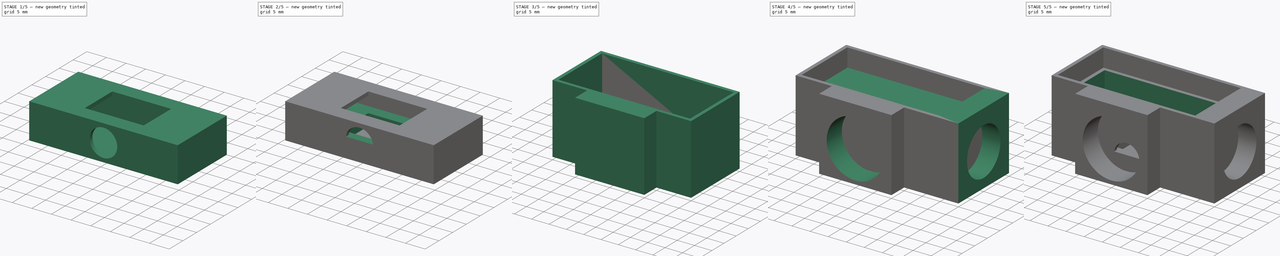
[diagram: build sequence overview — one tinted view per stage of 5, left to right]
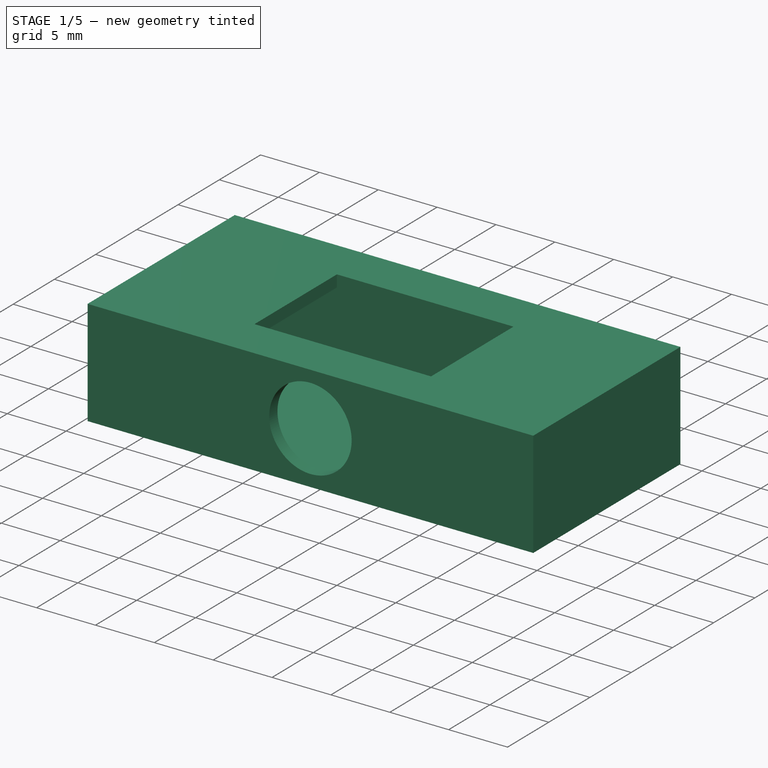
[diagram: stage 1 of 5 — iso view after this stage's code; geometry added in this stage tinted green]
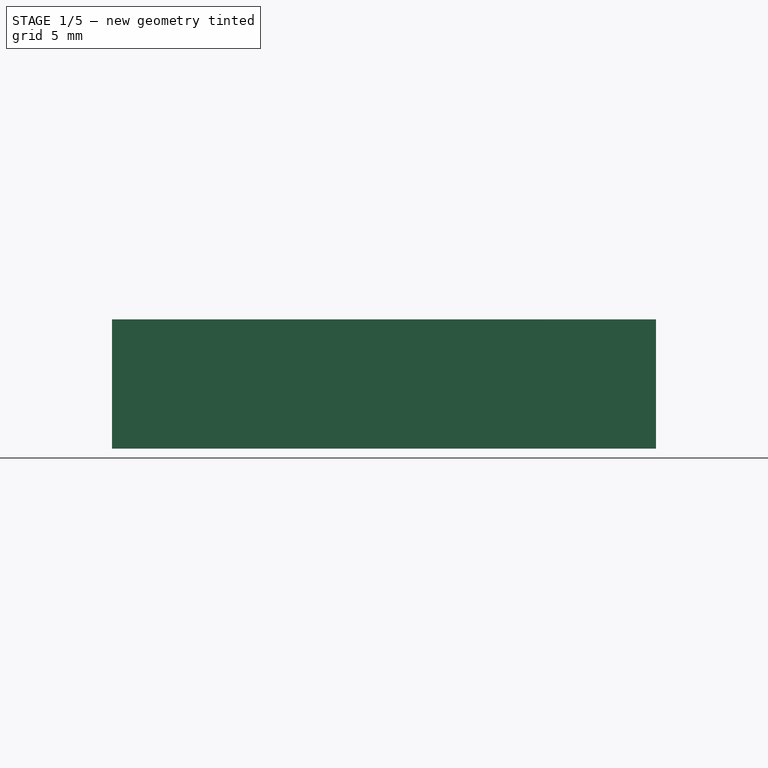
[diagram: stage 1 of 5 — front view after this stage's code; geometry added in this stage tinted green]
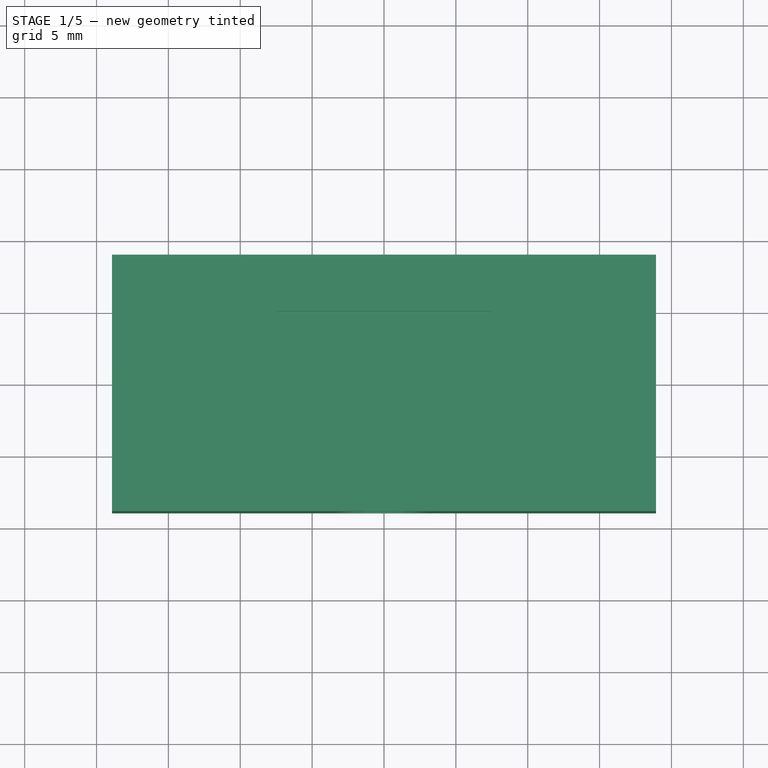
[diagram: stage 1 of 5 — top view after this stage's code; geometry added in this stage tinted green]
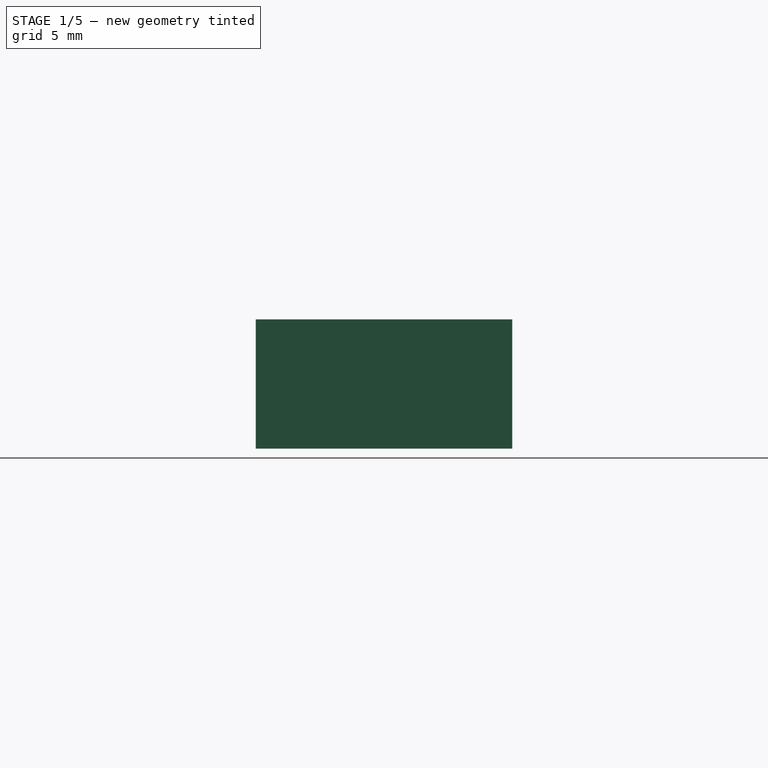
[diagram: stage 1 of 5 — right view after this stage's code; geometry added in this stage tinted green]
FCSTD DOCUMENT  (FreeCAD 1.0R39109 (Git))
Label: Pheidole2025
License: All rights reserved
LicenseURL: https://en.wikipedia.org/wiki/All_rights_reserved
objects: Sketcher::SketchObject×25, PartDesign::Pocket×16, PartDesign::Pad×9, PartDesign::Body×7
note: 132 computed .brp shape members not serialized (recipe doc carries the construction recipe); baked Part::Feature solids carry a one-line shape summary decoded from their .brp

FEATURE [PartDesign::Body] Body004  label="framemeshv2top"
  AllowCompound = false
  Group = -> [Sketch016,Pad006,Sketch017,Pocket010,Sketch018,Pocket011,Sketch019,Pocket012]
  Origin = -> Origin004
  Placement = pos=(0,0,10) rot=(0,0,1;0rad)
  Tip = -> Pocket012
FEATURE [Sketcher::SketchObject] Sketch020
  ArcFitTolerance = 1e-06
  AttachmentSupport = -> [XY_Plane005]
  FullyConstrained = true
  MakeInternals = false
  MapMode = 5
  sketch-geometry (4):
    g0: LineSegment StartX=-18.925 StartY=8.925 StartZ=0 EndX=-18.925 EndY=-8.925 EndZ=0
    g1: LineSegment StartX=-18.925 StartY=-8.925 StartZ=0 EndX=18.925 EndY=-8.925 EndZ=0
    g2: LineSegment StartX=18.925 StartY=-8.925 StartZ=0 EndX=18.925 EndY=8.925 EndZ=0
    g3: LineSegment StartX=18.925 StartY=8.925 StartZ=0 EndX=-18.925 EndY=8.925 EndZ=0
  constraints (12):
    c: Coincident(g0,g1)
    c: Coincident(g1,g2)
    c: Coincident(g2,g3)
    c: Coincident(g3,g0)
    c: Vertical(g0)
    c: Vertical(g2)
    c: Horizontal(g1)
    c: Horizontal(g3)
    c: DistanceX(g3,g3) = 37.85
    c: DistanceY(g2,g2) = 17.85
    c: DistanceX(g0,g-1) = 18.925
    c: DistanceY(g1,g-1) = 8.925
FEATURE [PartDesign::Pad] Pad007  label="cubevaciadobottom001"
  Direction = (0,0,1)
  Length = 9
  Length2 = 10
  Profile = -> Sketch020
  ReferenceAxis = -> Sketch020 [N_Axis]
  Refine = true
  Suppressed = false
  Type = 0
FEATURE [Sketcher::SketchObject] Sketch021
  ArcFitTolerance = 1e-06
  AttachmentSupport = -> [Pad007]
  FullyConstrained = true
  MakeInternals = false
  MapMode = 5
  Placement = pos=(0,0,0) rot=(1,0,0;3.14159rad)
  sketch-geometry (4):
    g0: LineSegment StartX=-17.925 StartY=7.925 StartZ=0 EndX=-17.925 EndY=-7.925 EndZ=0
    g1: LineSegment StartX=-17.925 StartY=-7.925 StartZ=0 EndX=17.925 EndY=-7.925 EndZ=0
    g2: LineSegment StartX=17.925 StartY=-7.925 StartZ=0 EndX=17.925 EndY=7.925 EndZ=0
    g3: LineSegment StartX=17.925 StartY=7.925 StartZ=0 EndX=-17.925 EndY=7.925 EndZ=0
  constraints (12):
    c: Coincident(g0,g1)
    c: Coincident(g1,g2)
    c: Coincident(g2,g3)
    c: Coincident(g3,g0)
    c: Vertical(g0)
    c: Vertical(g2)
    c: Horizontal(g1)
    c: Horizontal(g3)
    c: DistanceX(g3,g3) = 35.85
    c: DistanceY(g0,g0) = 15.85
    c: DistanceY(g-1,g0) = 7.925
    c: DistanceX(g0,g-1) = 17.925
FEATURE [PartDesign::Pocket] Pocket013  label="cubevaciadobottom"
  BaseFeature = -> Pad007
  Direction = (0,0,1)
  Length = 8
  Length2 = 5
  Profile = -> Sketch021
  ReferenceAxis = -> Sketch021 [N_Axis]
  Refine = true
  Suppressed = false
  Type = 0
FEATURE [Sketcher::SketchObject] Sketch022
  ArcFitTolerance = 1e-06
  AttachmentSupport = -> [Pocket013]
  FullyConstrained = true
  MakeInternals = false
  MapMode = 5
  Placement = pos=(0,0,8) rot=(1,0,0;3.14159rad)
  sketch-geometry (4):
    g0: LineSegment StartX=-7.5 StartY=5 StartZ=0 EndX=-7.5 EndY=-5 EndZ=0
    g1: LineSegment StartX=-7.5 StartY=-5 StartZ=0 EndX=7.5 EndY=-5 EndZ=0
    g2: LineSegment StartX=7.5 StartY=-5 StartZ=0 EndX=7.5 EndY=5 EndZ=0
    g3: LineSegment StartX=7.5 StartY=5 StartZ=0 EndX=-7.5 EndY=5 EndZ=0
  constraints (12):
    c: Coincident(g0,g1)
    c: Coincident(g1,g2)
    c: Coincident(g2,g3)
    c: Coincident(g3,g0)
    c: Vertical(g0)
    c: Vertical(g2)
    c: Horizontal(g1)
    c: Horizontal(g3)
    c: DistanceX(g3,g3) = 15
    c: DistanceY(g0,g0) = 10
    c: DistanceX(g0,g-1) = 7.5
    c: DistanceY(g0,g-1) = 5
FEATURE [PartDesign::Pocket] Pocket014  label="huecorectangular"
  BaseFeature = -> Pocket013
  Direction = (0,0,1)
  Length = 5
  Length2 = 5
  Profile = -> Sketch022
  ReferenceAxis = -> Sketch022 [N_Axis]
  Refine = true
  Suppressed = false
  Type = 0
FEATURE [Sketcher::SketchObject] Sketch023
  ArcFitTolerance = 1e-06
  AttachmentSupport = -> [Pocket014]
  FullyConstrained = true
  MakeInternals = false
  MapMode = 5
  Placement = pos=(0,-8.925,0) rot=(1,0,0;1.5708rad)
  sketch-geometry (1):
    g0: Circle CenterX=0 CenterY=4.5 CenterZ=0 NormalX=0 NormalY=0 NormalZ=1 AngleXU=0 Radius=3.5
  constraints (3):
    c: Radius(g0) = 3.5
    c: DistanceY(g-1,g0) = 4.5
    c: DistanceX(g0,g-1) = 0
FEATURE [Sketcher::SketchObject] Sketch024
  ArcFitTolerance = 1e-06
  AttachmentSupport = -> [XY_Plane006]
  FullyConstrained = true
  MakeInternals = false
  MapMode = 5
  sketch-geometry (4):
    g0: LineSegment StartX=-18.925 StartY=8.925 StartZ=0 EndX=-18.925 EndY=-8.925 EndZ=0
    g1: LineSegment StartX=-18.925 StartY=-8.925 StartZ=0 EndX=18.925 EndY=-8.925 EndZ=0
    g2: LineSegment StartX=18.925 StartY=-8.925 StartZ=0 EndX=18.925 EndY=8.925 EndZ=0
    g3: LineSegment StartX=18.925 StartY=8.925 StartZ=0 EndX=-18.925 EndY=8.925 EndZ=0
  constraints (12):
    c: Coincident(g0,g1)
    c: Coincident(g1,g2)
    c: Coincident(g2,g3)
    c: Coincident(g3,g0)
    c: Vertical(g0)
    c: Vertical(g2)
    c: Horizontal(g1)
    c: Horizontal(g3)
    c: DistanceX(g3,g3) = 37.85
    c: DistanceY(g0,g0) = 17.85
    c: DistanceX(g0,g-1) = 18.925
    c: DistanceY(g-1,g0) = 8.925
FEATURE [PartDesign::Pad] Pad008
  Direction = (0,0,1)
  Length = 1
  Length2 = 10
  Profile = -> Sketch024
  ReferenceAxis = -> Sketch024 [N_Axis]
  Refine = true
  Suppressed = false
  Type = 0
FEATURE [PartDesign::Body] Body006  label="cristal"
  AllowCompound = false
  Group = -> [Sketch024,Pad008]
  Origin = -> Origin006
  Placement = pos=(0,0,15) rot=(0,0,1;0rad)
  Tip = -> Pad008
FEATURE [PartDesign::Pocket] Pocket015
  BaseFeature = -> Pocket014
  Direction = (0,1,-2e-16)
  Length = 5
  Length2 = 5
  Profile = -> Sketch023
  ReferenceAxis = -> Sketch023 [N_Axis]
  Refine = true
  Suppressed = false
  Type = 0
FEATURE [PartDesign::Body] Body005  label="framemeshv2bottom"
  AllowCompound = false
  Group = -> [Sketch020,Pad007,Sketch021,Pocket013,Sketch022,Pocket014,Sketch023,Pocket015]
  Origin = -> Origin005
  Placement = pos=(0,0,1) rot=(0,0,1;0rad)
  Tip = -> Pocket015
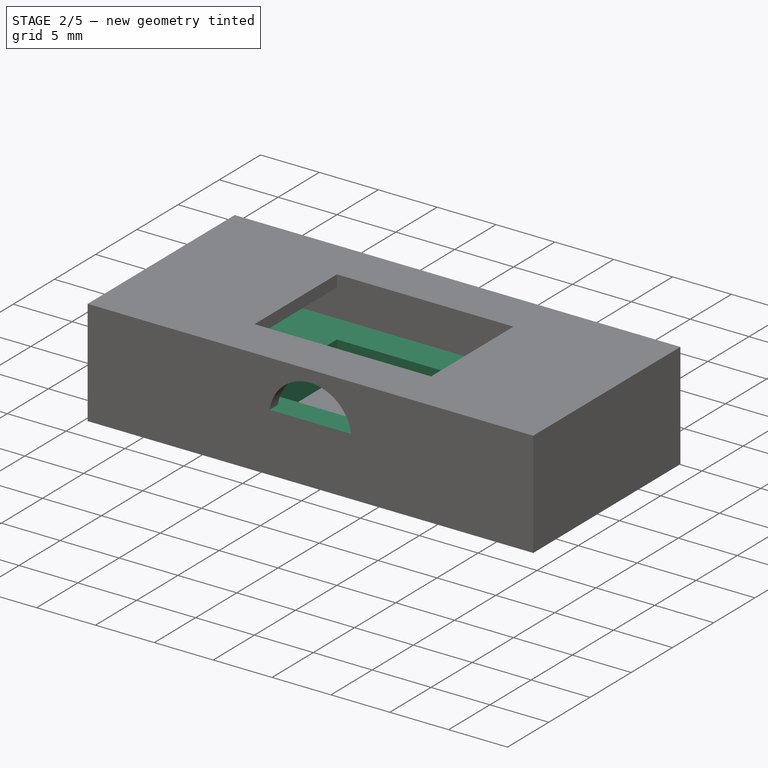
[diagram: stage 2 of 5 — iso view after this stage's code; geometry added in this stage tinted green]
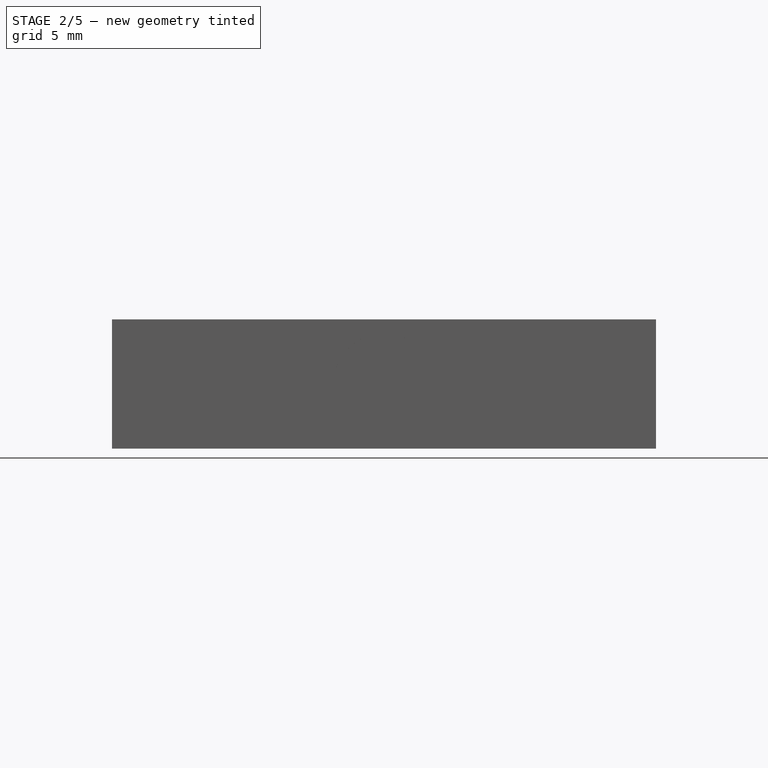
[diagram: stage 2 of 5 — front view after this stage's code; geometry added in this stage tinted green]
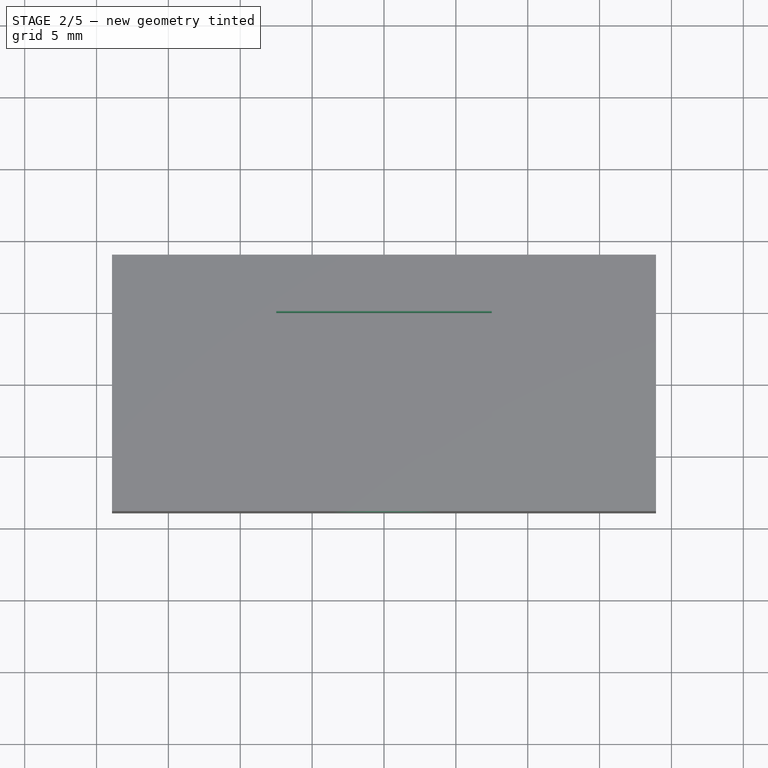
[diagram: stage 2 of 5 — top view after this stage's code; geometry added in this stage tinted green]
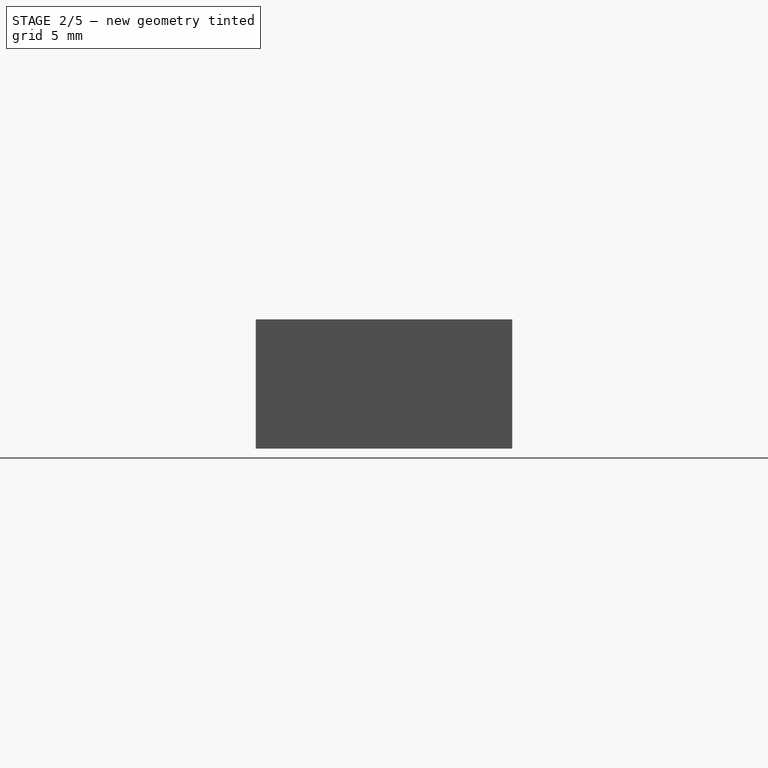
[diagram: stage 2 of 5 — right view after this stage's code; geometry added in this stage tinted green]
FEATURE [PartDesign::Body] Body002  label="Frame_top"
  AllowCompound = false
  Group = -> [Sketch013,Pad004]
  Origin = -> Origin002
  Placement = pos=(0,0,16) rot=(0,0,1;0rad)
  Tip = -> Pad004
FEATURE [Sketcher::SketchObject] Sketch014
  ArcFitTolerance = 1e-06
  AttachmentSupport = -> [XY_Plane003]
  FullyConstrained = true
  MakeInternals = false
  MapMode = 5
  sketch-geometry (8):
    g0: LineSegment StartX=-17.85 StartY=7.85 StartZ=0 EndX=-17.85 EndY=-7.85 EndZ=0
    g1: LineSegment StartX=-17.85 StartY=-7.85 StartZ=0 EndX=17.85 EndY=-7.85 EndZ=0
    g2: LineSegment StartX=17.85 StartY=-7.85 StartZ=0 EndX=17.85 EndY=7.85 EndZ=0
    g3: LineSegment StartX=17.85 StartY=7.85 StartZ=0 EndX=-17.85 EndY=7.85 EndZ=0
    g4: LineSegment StartX=-7.5 StartY=5 StartZ=0 EndX=-7.5 EndY=-5 EndZ=0
    g5: LineSegment StartX=-7.5 StartY=-5 StartZ=0 EndX=7.5 EndY=-5 EndZ=0
    g6: LineSegment StartX=7.5 StartY=-5 StartZ=0 EndX=7.5 EndY=5 EndZ=0
    g7: LineSegment StartX=7.5 StartY=5 StartZ=0 EndX=-7.5 EndY=5 EndZ=0
  constraints (24):
    c: Coincident(g0,g1)
    c: Coincident(g1,g2)
    c: Coincident(g2,g3)
    c: Coincident(g3,g0)
    c: Vertical(g0)
    c: Vertical(g2)
    c: Horizontal(g1)
    c: Horizontal(g3)
    c: Coincident(g4,g5)
    c: Coincident(g5,g6)
    c: Coincident(g6,g7)
    c: Coincident(g7,g4)
    c: Vertical(g4)
    c: Vertical(g6)
    c: Horizontal(g5)
    c: Horizontal(g7)
    c: DistanceX(g3,g3) = 35.7
    c: DistanceY(g0,g0) = 15.7
    c: DistanceX(g0,g-1) = 17.85
    c: DistanceY(g0,g-1) = 7.85
    c: DistanceX(g7,g7) = 15
    c: DistanceY(g4,g4) = 10
    c: DistanceX(g4,g-1) = 7.5
    c: DistanceY(g4,g-1) = 5
FEATURE [PartDesign::Pad] Pad005  label="Limitador_extruido"
  Direction = (0,0,1)
  Length = 4
  Length2 = 10
  Profile = -> Sketch014
  ReferenceAxis = -> Sketch014 [N_Axis]
  Refine = true
  Suppressed = false
  Type = 0
FEATURE [PartDesign::Body] Body003  label="Limitador_espacio"
  AllowCompound = false
  Group = -> [Sketch014,Pad005,Sketch015,Pocket009]
  Origin = -> Origin003
  Placement = pos=(0,0,11) rot=(0,0,1;0rad)
  Tip = -> Pocket009
FEATURE [Sketcher::SketchObject] Sketch016
  ArcFitTolerance = 1e-06
  AttachmentSupport = -> [XY_Plane004]
  FullyConstrained = true
  MakeInternals = false
  MapMode = 5
  sketch-geometry (4):
    g0: LineSegment StartX=-18.925 StartY=8.925 StartZ=0 EndX=-18.925 EndY=-8.925 EndZ=0
    g1: LineSegment StartX=-18.925 StartY=-8.925 StartZ=0 EndX=18.925 EndY=-8.925 EndZ=0
    g2: LineSegment StartX=18.925 StartY=-8.925 StartZ=0 EndX=18.925 EndY=8.925 EndZ=0
    g3: LineSegment StartX=18.925 StartY=8.925 StartZ=0 EndX=-18.925 EndY=8.925 EndZ=0
  constraints (12):
    c: Coincident(g0,g1)
    c: Coincident(g1,g2)
    c: Coincident(g2,g3)
    c: Coincident(g3,g0)
    c: Vertical(g0)
    c: Vertical(g2)
    c: Horizontal(g1)
    c: Horizontal(g3)
    c: DistanceX(g3,g3) = 37.85
    c: DistanceY(g0,g0) = 17.85
    c: DistanceY(g-1,g0) = 8.925
    c: DistanceX(g0,g-1) = 18.925
FEATURE [PartDesign::Pad] Pad006  label="cube"
  Direction = (0,0,1)
  Length = 5
  Length2 = 10
  Profile = -> Sketch016
  ReferenceAxis = -> Sketch016 [N_Axis]
  Refine = true
  Suppressed = false
  Type = 0
FEATURE [Sketcher::SketchObject] Sketch017
  ArcFitTolerance = 1e-06
  AttachmentSupport = -> [Pad006]
  FullyConstrained = true
  MakeInternals = false
  MapMode = 5
  Placement = pos=(0,0,5) rot=(0,0,1;0rad)
  sketch-geometry (4):
    g0: LineSegment StartX=-17.925 StartY=7.925 StartZ=0 EndX=-17.925 EndY=-7.925 EndZ=0
    g1: LineSegment StartX=-17.925 StartY=-7.925 StartZ=0 EndX=17.925 EndY=-7.925 EndZ=0
    g2: LineSegment StartX=17.925 StartY=-7.925 StartZ=0 EndX=17.925 EndY=7.925 EndZ=0
    g3: LineSegment StartX=17.925 StartY=7.925 StartZ=0 EndX=-17.925 EndY=7.925 EndZ=0
  constraints (12):
    c: Coincident(g0,g1)
    c: Coincident(g1,g2)
    c: Coincident(g2,g3)
    c: Coincident(g3,g0)
    c: Vertical(g0)
    c: Vertical(g2)
    c: Horizontal(g1)
    c: Horizontal(g3)
    c: DistanceX(g3,g3) = 35.85
    c: DistanceY(g0,g0) = 15.85
    c: DistanceY(g-1,g0) = 7.925
    c: DistanceX(g0,g-1) = 17.925
FEATURE [PartDesign::Pocket] Pocket010  label="cubevaciado"
  BaseFeature = -> Pad006
  Direction = (0,0,-1)
  Length = 4
  Length2 = 5
  Profile = -> Sketch017
  ReferenceAxis = -> Sketch017 [N_Axis]
  Refine = true
  Suppressed = false
  Type = 0
FEATURE [Sketcher::SketchObject] Sketch018
  ArcFitTolerance = 1e-06
  AttachmentSupport = -> [Pocket010]
  FullyConstrained = true
  MakeInternals = false
  MapMode = 5
  Placement = pos=(0,0,1) rot=(0,0,1;0rad)
  sketch-geometry (4):
    g0: LineSegment StartX=-7.5 StartY=5 StartZ=0 EndX=-7.5 EndY=-5 EndZ=0
    g1: LineSegment StartX=-7.5 StartY=-5 StartZ=0 EndX=7.5 EndY=-5 EndZ=0
    g2: LineSegment StartX=7.5 StartY=-5 StartZ=0 EndX=7.5 EndY=5 EndZ=0
    g3: LineSegment StartX=7.5 StartY=5 StartZ=0 EndX=-7.5 EndY=5 EndZ=0
  constraints (12):
    c: Coincident(g0,g1)
    c: Coincident(g1,g2)
    c: Coincident(g2,g3)
    c: Coincident(g3,g0)
    c: Vertical(g0)
    c: Vertical(g2)
    c: Horizontal(g1)
    c: Horizontal(g3)
    c: DistanceX(g3,g3) = 15
    c: DistanceY(g0,g0) = 10
    c: DistanceX(g0,g-1) = 7.5
    c: DistanceY(g-1,g0) = 5
FEATURE [PartDesign::Pocket] Pocket011  label="agujeromedio"
  BaseFeature = -> Pocket010
  Direction = (0,0,-1)
  Length = 5
  Length2 = 5
  Profile = -> Sketch018
  ReferenceAxis = -> Sketch018 [N_Axis]
  Refine = true
  Suppressed = false
  Type = 0
FEATURE [Sketcher::SketchObject] Sketch019
  ArcFitTolerance = 1e-06
  AttachmentSupport = -> [Pocket011]
  FullyConstrained = true
  MakeInternals = false
  MapMode = 5
  Placement = pos=(18.925,0,0) rot=(0.57735,0.57735,0.57735;2.0944rad)
  sketch-geometry (1):
    g0: Circle CenterX=0 CenterY=2.75 CenterZ=0 NormalX=0 NormalY=0 NormalZ=1 AngleXU=0 Radius=1.75
  constraints (3):
    c: Diameter(g0) = 3.5
    c: DistanceX(g0,g-1) = 0
    c: DistanceY(g-1,g0) = 2.75
FEATURE [PartDesign::Pocket] Pocket012  label="agujerohormigas"
  BaseFeature = -> Pocket011
  Direction = (-1,0,0)
  Length = 5
  Length2 = 5
  Profile = -> Sketch019
  ReferenceAxis = -> Sketch019 [N_Axis]
  Refine = true
  Suppressed = false
  Type = 0
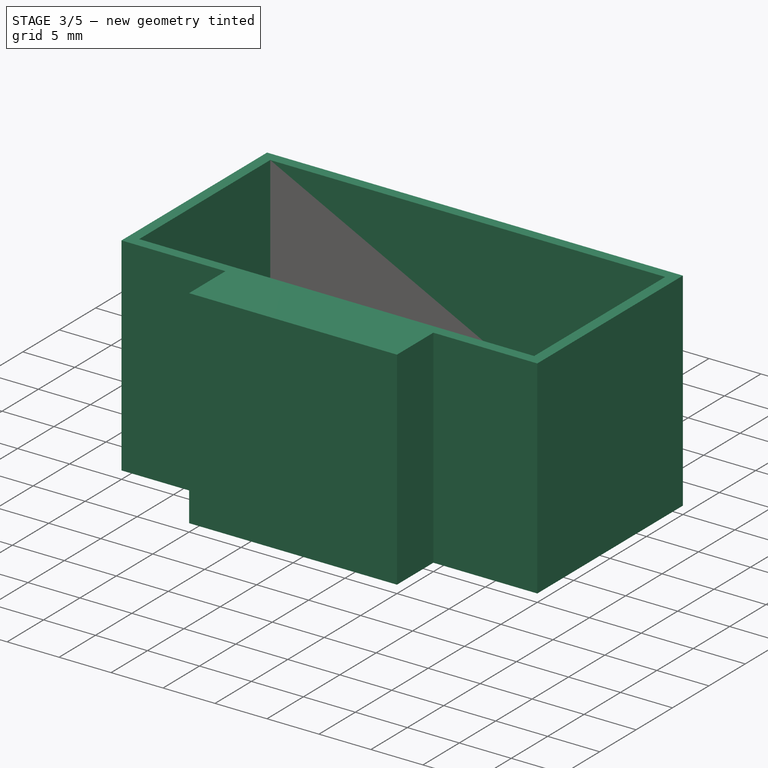
[diagram: stage 3 of 5 — iso view after this stage's code; geometry added in this stage tinted green]
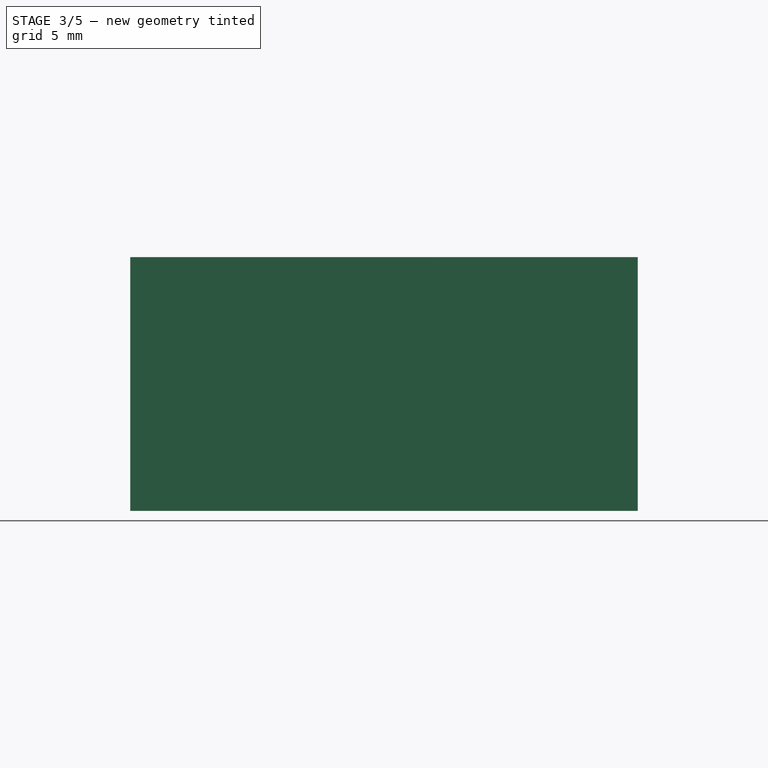
[diagram: stage 3 of 5 — front view after this stage's code; geometry added in this stage tinted green]
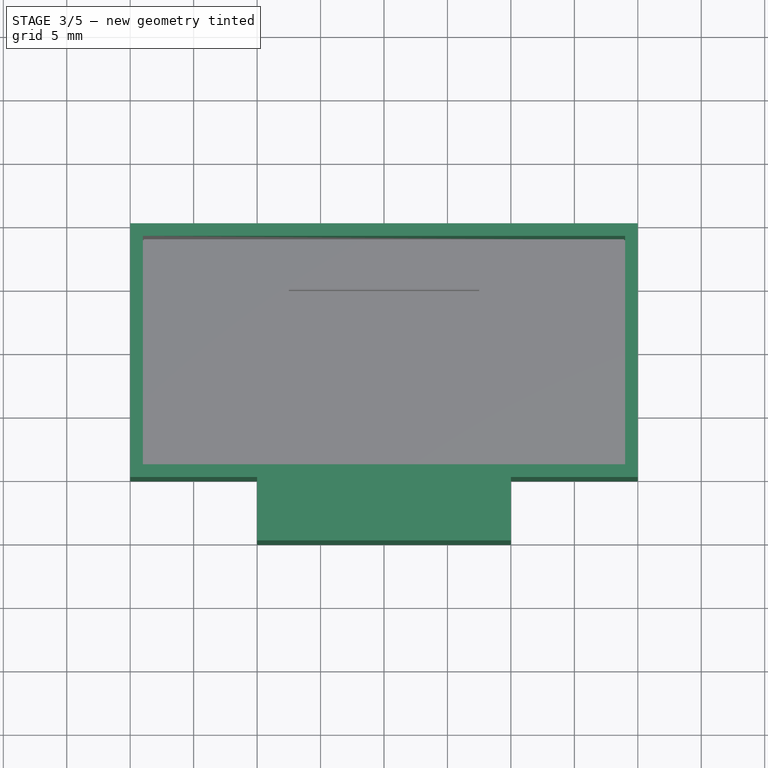
[diagram: stage 3 of 5 — top view after this stage's code; geometry added in this stage tinted green]
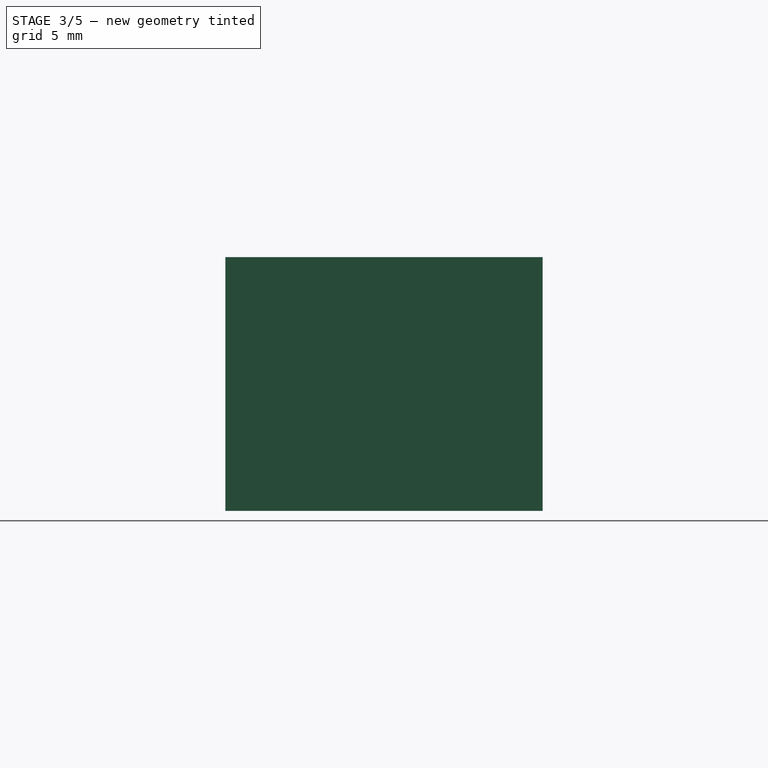
[diagram: stage 3 of 5 — right view after this stage's code; geometry added in this stage tinted green]
FEATURE [Sketcher::SketchObject] Sketch
  ArcFitTolerance = 1e-06
  AttachmentSupport = -> [XY_Plane]
  FullyConstrained = true
  MakeInternals = false
  MapMode = 5
  sketch-geometry (4):
    g0: LineSegment StartX=-20 StartY=10 StartZ=0 EndX=-20 EndY=-10 EndZ=0
    g1: LineSegment StartX=-20 StartY=-10 StartZ=0 EndX=20 EndY=-10 EndZ=0
    g2: LineSegment StartX=20 StartY=-10 StartZ=0 EndX=20 EndY=10 EndZ=0
    g3: LineSegment StartX=20 StartY=10 StartZ=0 EndX=-20 EndY=10 EndZ=0
  constraints (12):
    c: Coincident(g0,g1)
    c: Coincident(g1,g2)
    c: Coincident(g2,g3)
    c: Coincident(g3,g0)
    c: Vertical(g0)
    c: Vertical(g2)
    c: Horizontal(g1)
    c: Horizontal(g3)
    c: DistanceX(g3,g3) = 40
    c: DistanceY(g0,g0) = 20
    c: DistanceY(g0,g-1) = 10
    c: DistanceX(g0,g-1) = 20
FEATURE [PartDesign::Pad] Pad  label="ext_cube"
  Direction = (0,0,1)
  Length = 20
  Length2 = 10
  Profile = -> Sketch
  ReferenceAxis = -> Sketch [N_Axis]
  Refine = true
  Suppressed = false
  Type = 0
FEATURE [Sketcher::SketchObject] Sketch001
  ArcFitTolerance = 1e-06
  AttachmentSupport = -> [Pad]
  FullyConstrained = true
  MakeInternals = false
  MapMode = 5
  Placement = pos=(0,0,20) rot=(0,0,1;0rad)
  sketch-geometry (4):
    g0: LineSegment StartX=-19 StartY=9 StartZ=0 EndX=-19 EndY=-9 EndZ=0
    g1: LineSegment StartX=-19 StartY=-9 StartZ=0 EndX=19 EndY=-9 EndZ=0
    g2: LineSegment StartX=19 StartY=-9 StartZ=0 EndX=19 EndY=9 EndZ=0
    g3: LineSegment StartX=19 StartY=9 StartZ=0 EndX=-19 EndY=9 EndZ=0
  constraints (12):
    c: Coincident(g0,g1)
    c: Coincident(g1,g2)
    c: Coincident(g2,g3)
    c: Coincident(g3,g0)
    c: Vertical(g0)
    c: Vertical(g2)
    c: Horizontal(g1)
    c: Horizontal(g3)
    c: DistanceX(g3,g3) = 38
    c: DistanceY(g0,g0) = 18
    c: DistanceX(g0,g-1) = 19
    c: DistanceY(g0,g-1) = 9
FEATURE [PartDesign::Pocket] Pocket  label="ext_cube_vaciado"
  BaseFeature = -> Pad
  Direction = (0,0,-1)
  Length = 19
  Length2 = 5
  Profile = -> Sketch001
  ReferenceAxis = -> Sketch001 [N_Axis]
  Refine = true
  Suppressed = false
  Type = 0
FEATURE [Sketcher::SketchObject] Sketch007
  ArcFitTolerance = 1e-06
  AttachmentSupport = -> [Pocket]
  FullyConstrained = true
  MakeInternals = false
  MapMode = 5
  Placement = pos=(0,-10,0) rot=(1,0,0;1.5708rad)
  sketch-geometry (4):
    g0: LineSegment StartX=-10 StartY=20 StartZ=0 EndX=-10 EndY=0 EndZ=0
    g1: LineSegment StartX=-10 StartY=0 StartZ=0 EndX=10 EndY=0 EndZ=0
    g2: LineSegment StartX=10 StartY=0 StartZ=0 EndX=10 EndY=20 EndZ=0
    g3: LineSegment StartX=10 StartY=20 StartZ=0 EndX=-10 EndY=20 EndZ=0
  constraints (12):
    c: Coincident(g0,g1)
    c: Coincident(g1,g2)
    c: Coincident(g2,g3)
    c: Coincident(g3,g0)
    c: Vertical(g0)
    c: Vertical(g2)
    c: Horizontal(g1)
    c: Horizontal(g3)
    c: DistanceX(g3,g3) = 20
    c: DistanceY(g0,g0) = 20
    c: DistanceY(g-1,g0) = 20
    c: DistanceX(g0,g-1) = 10
FEATURE [PartDesign::Pad] Pad002  label="ext_cube_tube"
  BaseFeature = -> Pocket
  Direction = (0,-1,2e-16)
  Length = 5
  Length2 = 10
  Profile = -> Sketch007
  ReferenceAxis = -> Sketch007 [N_Axis]
  Refine = true
  Suppressed = false
  Type = 0
FEATURE [PartDesign::Body] Body  label="Shelter"
  AllowCompound = false
  Group = -> [Sketch,Pad,Sketch001,Pocket,Sketch007,Pad002,Sketch008,Pocket005,Sketch010,Pad003,Sketch011,Pocket007,Sketch012,Pocket008]
  Origin = -> Origin
  Tip = -> Pocket008
FEATURE [Sketcher::SketchObject] Sketch013
  ArcFitTolerance = 1e-06
  AttachmentSupport = -> [XY_Plane002]
  FullyConstrained = true
  MakeInternals = false
  MapMode = 5
  sketch-geometry (8):
    g0: LineSegment StartX=-18.925 StartY=8.925 StartZ=0 EndX=-18.925 EndY=-8.925 EndZ=0
    g1: LineSegment StartX=-18.925 StartY=-8.925 StartZ=0 EndX=18.925 EndY=-8.925 EndZ=0
    g2: LineSegment StartX=18.925 StartY=-8.925 StartZ=0 EndX=18.925 EndY=8.925 EndZ=0
    g3: LineSegment StartX=18.925 StartY=8.925 StartZ=0 EndX=-18.925 EndY=8.925 EndZ=0
    g4: LineSegment StartX=-16.925 StartY=6.925 StartZ=0 EndX=-16.925 EndY=-6.925 EndZ=0
    g5: LineSegment StartX=-16.925 StartY=-6.925 StartZ=0 EndX=16.925 EndY=-6.925 EndZ=0
    g6: LineSegment StartX=16.925 StartY=-6.925 StartZ=0 EndX=16.925 EndY=6.925 EndZ=0
    g7: LineSegment StartX=16.925 StartY=6.925 StartZ=0 EndX=-16.925 EndY=6.925 EndZ=0
  constraints (24):
    c: Coincident(g0,g1)
    c: Coincident(g1,g2)
    c: Coincident(g2,g3)
    c: Coincident(g3,g0)
    c: Vertical(g0)
    c: Vertical(g2)
    c: Horizontal(g1)
    c: Horizontal(g3)
    c: DistanceX(g3,g3) = 37.85
    c: DistanceY(g0,g0) = 17.85
    c: DistanceX(g0,g-1) = 18.925
    c: DistanceY(g0,g-1) = 8.925
    c: Coincident(g4,g5)
    c: Coincident(g5,g6)
    c: Coincident(g6,g7)
    c: Coincident(g7,g4)
    c: Vertical(g4)
    c: Vertical(g6)
    c: Horizontal(g5)
    c: Horizontal(g7)
    c: DistanceX(g7,g7) = 33.85
    c: DistanceY(g4,g4) = 13.85
    c: DistanceX(g4,g-1) = 16.925
    c: DistanceY(g-1,g4) = 6.925
FEATURE [PartDesign::Pad] Pad004  label="Frame_topextruido"
  Direction = (0,0,1)
  Length = 4
  Length2 = 10
  Profile = -> Sketch013
  ReferenceAxis = -> Sketch013 [N_Axis]
  Refine = true
  Suppressed = false
  Type = 0
FEATURE [Sketcher::SketchObject] Sketch015
  ArcFitTolerance = 1e-06
  AttachmentSupport = -> [Pad005]
  FullyConstrained = true
  MakeInternals = false
  MapMode = 5
  Placement = pos=(17.85,0,0) rot=(0.57735,0.57735,0.57735;2.0944rad)
  sketch-geometry (4):
    g0: LineSegment StartX=-2 StartY=5 StartZ=0 EndX=-2 EndY=0 EndZ=0
    g1: LineSegment StartX=-2 StartY=0 StartZ=0 EndX=2 EndY=0 EndZ=0
    g2: LineSegment StartX=2 StartY=0 StartZ=0 EndX=2 EndY=5 EndZ=0
    g3: LineSegment StartX=2 StartY=5 StartZ=0 EndX=-2 EndY=5 EndZ=0
  constraints (12):
    c: Coincident(g0,g1)
    c: Coincident(g1,g2)
    c: Coincident(g2,g3)
    c: Coincident(g3,g0)
    c: Vertical(g0)
    c: Vertical(g2)
    c: Horizontal(g1)
    c: Horizontal(g3)
    c: PointOnObject(g1,g-1)
    c: DistanceX(g3,g3) = 4
    c: DistanceY(g0,g0) = 5
    c: DistanceX(g0,g-1) = 2
FEATURE [PartDesign::Pocket] Pocket009  label="limitador_huevo_tube"
  BaseFeature = -> Pad005
  Direction = (-1,0,0)
  Length = 11
  Length2 = 5
  Profile = -> Sketch015
  ReferenceAxis = -> Sketch015 [N_Axis]
  Refine = true
  Suppressed = false
  Type = 0
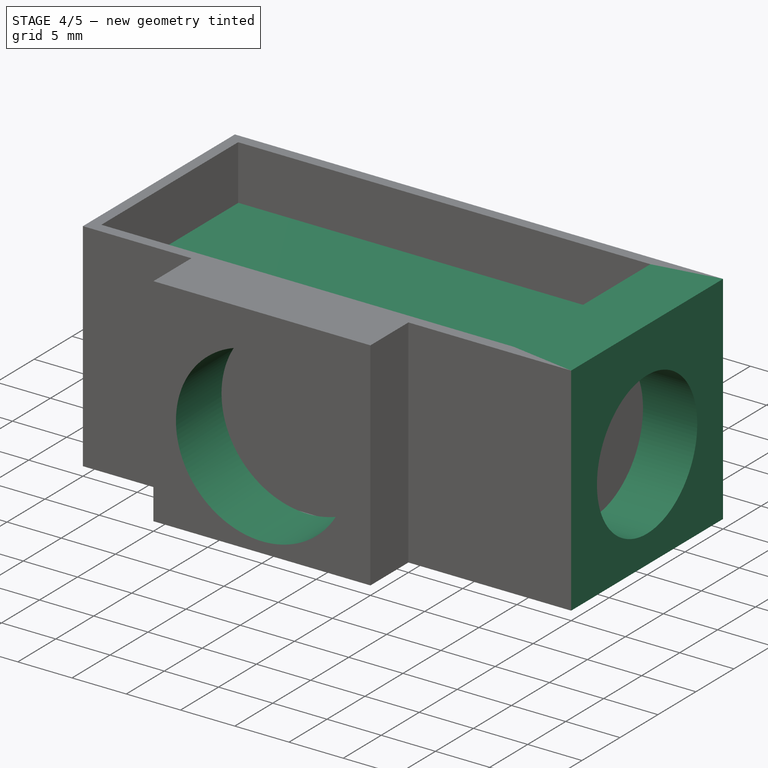
[diagram: stage 4 of 5 — iso view after this stage's code; geometry added in this stage tinted green]
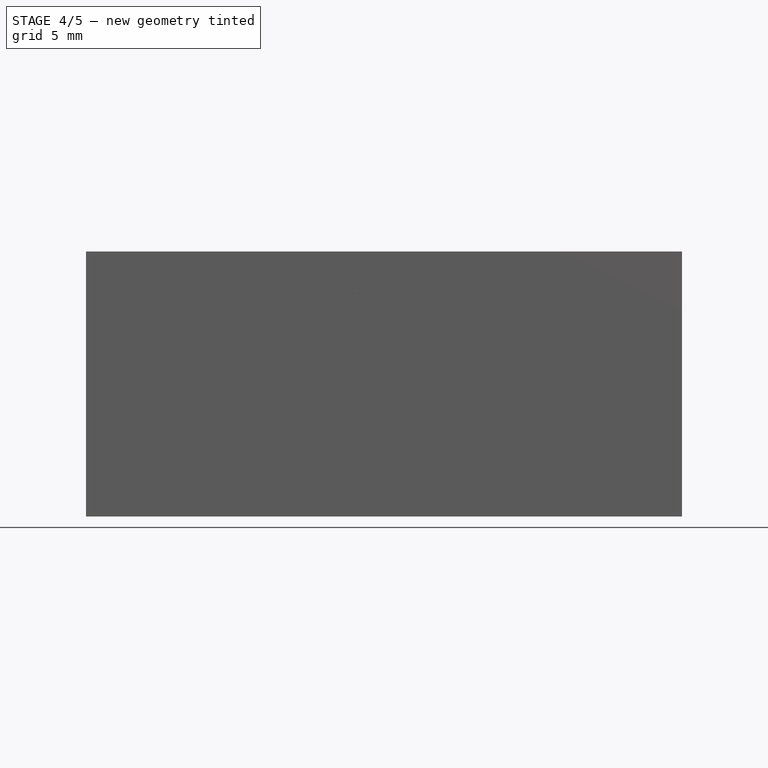
[diagram: stage 4 of 5 — front view after this stage's code; geometry added in this stage tinted green]
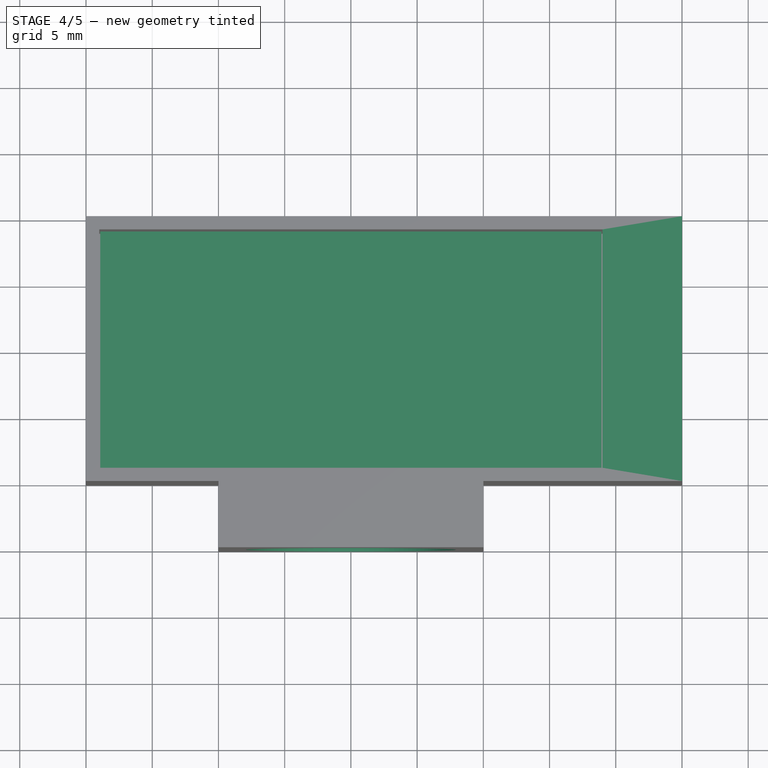
[diagram: stage 4 of 5 — top view after this stage's code; geometry added in this stage tinted green]
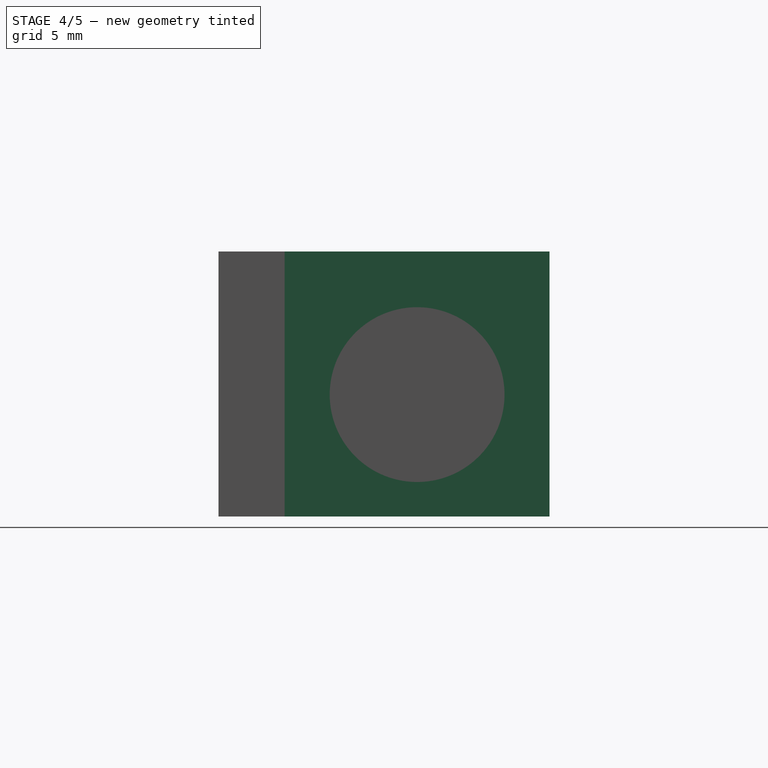
[diagram: stage 4 of 5 — right view after this stage's code; geometry added in this stage tinted green]
FEATURE [Sketcher::SketchObject] Sketch002
  ArcFitTolerance = 1e-06
  AttachmentSupport = -> [XY_Plane001]
  FullyConstrained = true
  MakeInternals = false
  MapMode = 5
  sketch-geometry (4):
    g0: LineSegment StartX=-18.925 StartY=8.925 StartZ=0 EndX=-18.925 EndY=-8.925 EndZ=0
    g1: LineSegment StartX=-18.925 StartY=-8.925 StartZ=0 EndX=18.925 EndY=-8.925 EndZ=0
    g2: LineSegment StartX=18.925 StartY=-8.925 StartZ=0 EndX=18.925 EndY=8.925 EndZ=0
    g3: LineSegment StartX=18.925 StartY=8.925 StartZ=0 EndX=-18.925 EndY=8.925 EndZ=0
  constraints (12):
    c: Coincident(g0,g1)
    c: Coincident(g1,g2)
    c: Coincident(g2,g3)
    c: Coincident(g3,g0)
    c: Vertical(g0)
    c: Vertical(g2)
    c: Horizontal(g1)
    c: Horizontal(g3)
    c: DistanceX(g3,g3) = 37.85
    c: DistanceY(g2,g2) = 17.85
    c: DistanceY(g-1,g0) = 8.925
    c: DistanceX(g0,g-1) = 18.925
FEATURE [PartDesign::Pad] Pad001  label="cubeframemesh"
  Direction = (0,0,1)
  Length = 15
  Length2 = 10
  Profile = -> Sketch002
  ReferenceAxis = -> Sketch002 [N_Axis]
  Refine = true
  Suppressed = false
  Type = 0
FEATURE [Sketcher::SketchObject] Sketch008
  ArcFitTolerance = 1e-06
  AttachmentSupport = -> [Pad002]
  FullyConstrained = true
  MakeInternals = false
  MapMode = 5
  Placement = pos=(0,-15,4.1e-15) rot=(1,0,0;1.5708rad)
  sketch-geometry (1):
    g0: Circle CenterX=0 CenterY=8.925 CenterZ=0 NormalX=0 NormalY=0 NormalZ=1 AngleXU=0 Radius=7.925
  constraints (3):
    c: Radius(g0) = 7.925
    c: DistanceX(g0,g-1) = 0
    c: DistanceY(g-1,g0) = 8.925
FEATURE [PartDesign::Pocket] Pocket005  label="ext_cube_tube_agujero"
  BaseFeature = -> Pad002
  Direction = (0,1,-2e-16)
  Length = 10
  Length2 = 5
  Profile = -> Sketch008
  ReferenceAxis = -> Sketch008 [N_Axis]
  Refine = true
  Suppressed = false
  Type = 0
FEATURE [PartDesign::Body] Body001  label="Framemesh"
  AllowCompound = false
  Group = -> [Sketch002,Pad001,Sketch003,Pocket001,Sketch004,Pocket002,Sketch005,Pocket003,Sketch006,Pocket004,Sketch009,Pocket006]
  Origin = -> Origin001
  Placement = pos=(0,0,1) rot=(0,0,1;0rad)
  Tip = -> Pocket006
FEATURE [Sketcher::SketchObject] Sketch010
  ArcFitTolerance = 1e-06
  AttachmentSupport = -> [Pocket005]
  FullyConstrained = true
  MakeInternals = false
  MapMode = 5
  Placement = pos=(20,0,0) rot=(0.57735,0.57735,0.57735;2.0944rad)
  sketch-geometry (4):
    g0: LineSegment StartX=-10 StartY=20 StartZ=0 EndX=-10 EndY=0 EndZ=0
    g1: LineSegment StartX=-10 StartY=0 StartZ=0 EndX=10 EndY=0 EndZ=0
    g2: LineSegment StartX=10 StartY=0 StartZ=0 EndX=10 EndY=20 EndZ=0
    g3: LineSegment StartX=10 StartY=20 StartZ=0 EndX=-10 EndY=20 EndZ=0
  constraints (12):
    c: Coincident(g0,g1)
    c: Coincident(g1,g2)
    c: Coincident(g2,g3)
    c: Coincident(g3,g0)
    c: Vertical(g0)
    c: Vertical(g2)
    c: Horizontal(g1)
    c: Horizontal(g3)
    c: DistanceY(g0,g0) = 20
    c: DistanceX(g3,g3) = 20
    c: DistanceX(g0,g-1) = 10
    c: DistanceY(g-1,g0) = 20
FEATURE [PartDesign::Pad] Pad003  label="ext_cube_exp_lateral"
  BaseFeature = -> Pocket005
  Direction = (1,0,0)
  Length = 5
  Length2 = 10
  Profile = -> Sketch010
  ReferenceAxis = -> Sketch010 [N_Axis]
  Refine = true
  Suppressed = false
  Type = 0
FEATURE [Sketcher::SketchObject] Sketch011
  ArcFitTolerance = 1e-06
  AttachmentSupport = -> [Pad003]
  FullyConstrained = true
  MakeInternals = false
  MapMode = 5
  Placement = pos=(25,0,0) rot=(0.57735,0.57735,0.57735;2.0944rad)
  sketch-geometry (1):
    g0: Circle CenterX=0 CenterY=9.2 CenterZ=0 NormalX=0 NormalY=0 NormalZ=1 AngleXU=0 Radius=6.6
  constraints (3):
    c: Radius(g0) = 6.6
    c: DistanceX(g0,g-1) = 0
    c: DistanceY(g-1,g0) = 9.2
FEATURE [PartDesign::Pocket] Pocket007  label="ext_cube_tube_hormigas"
  BaseFeature = -> Pad003
  Direction = (-1,0,0)
  Length = 5
  Length2 = 5
  Profile = -> Sketch011
  ReferenceAxis = -> Sketch011 [N_Axis]
  Refine = true
  Suppressed = false
  Type = 0
FEATURE [Sketcher::SketchObject] Sketch012
  ArcFitTolerance = 1e-06
  AttachmentSupport = -> [Pocket007]
  FullyConstrained = true
  MakeInternals = false
  MapMode = 5
  Placement = pos=(20,0,0) rot=(0.57735,0.57735,0.57735;2.0944rad)
  sketch-geometry (1):
    g0: Circle CenterX=0 CenterY=13 CenterZ=0 NormalX=0 NormalY=0 NormalZ=1 AngleXU=0 Radius=2
  constraints (3):
    c: Radius(g0) = 2
    c: DistanceX(g0,g-1) = 0
    c: DistanceY(g-1,g0) = 13
FEATURE [PartDesign::Pocket] Pocket008  label="ext_cube_tube_agujero_pequeño"
  BaseFeature = -> Pocket007
  Direction = (-1,0,0)
  Length = 5
  Length2 = 5
  Profile = -> Sketch012
  ReferenceAxis = -> Sketch012 [N_Axis]
  Refine = true
  Suppressed = false
  Type = 0
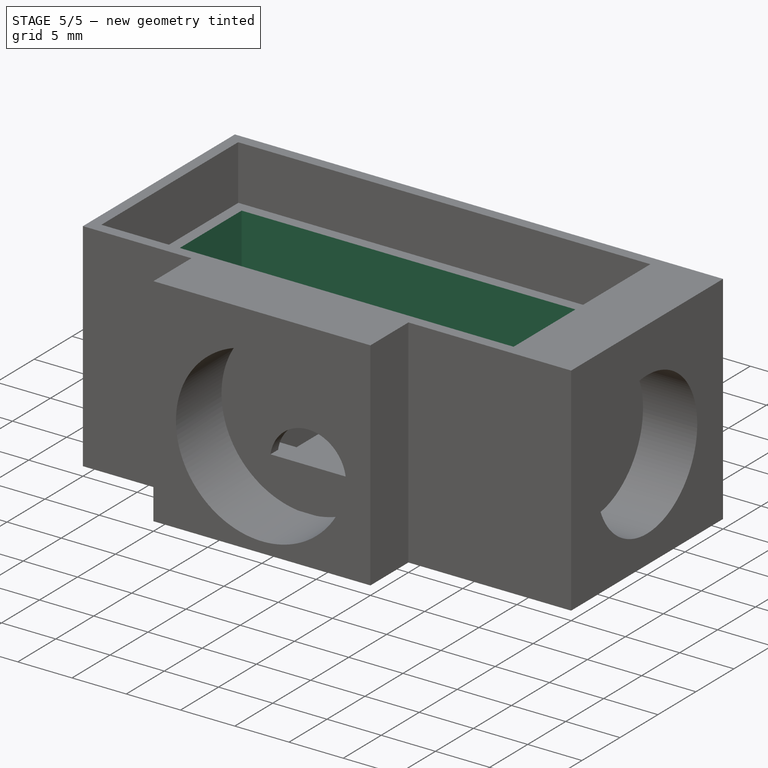
[diagram: stage 5 of 5 — iso view after this stage's code; geometry added in this stage tinted green]
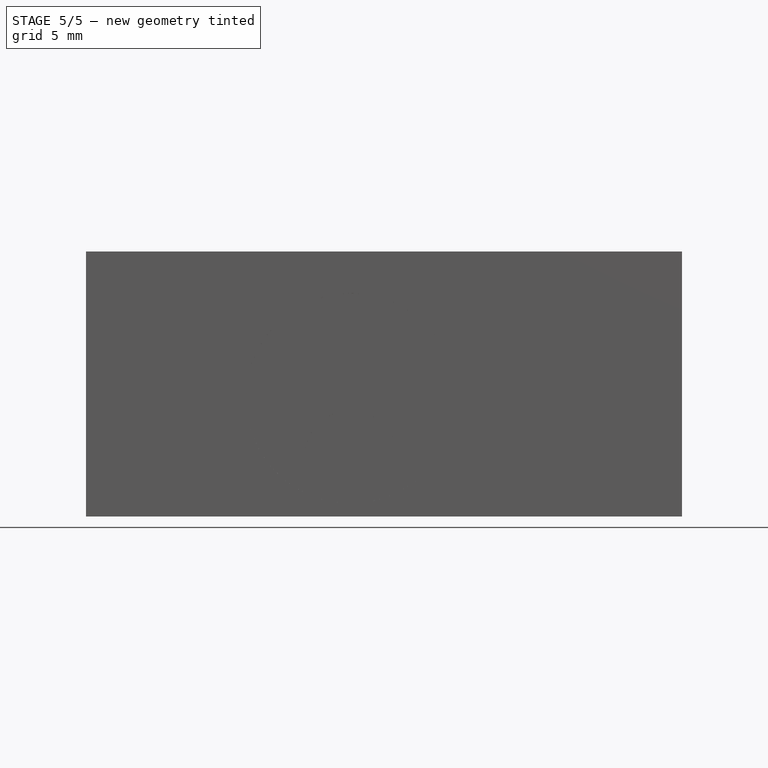
[diagram: stage 5 of 5 — front view after this stage's code; geometry added in this stage tinted green]
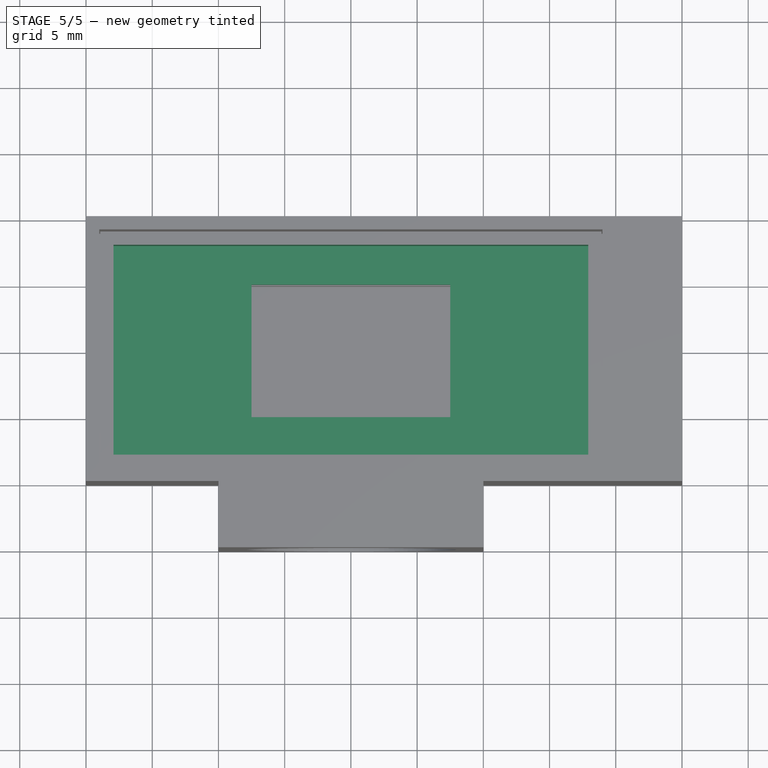
[diagram: stage 5 of 5 — top view after this stage's code; geometry added in this stage tinted green]
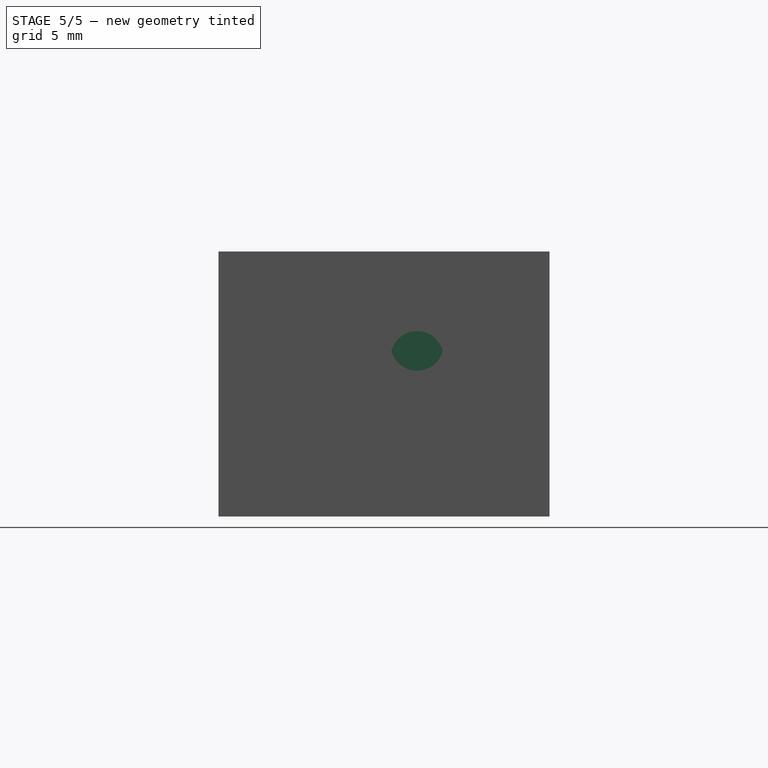
[diagram: stage 5 of 5 — right view after this stage's code; geometry added in this stage tinted green]
FEATURE [Sketcher::SketchObject] Sketch003
  ArcFitTolerance = 1e-06
  AttachmentSupport = -> [Pad001]
  FullyConstrained = true
  MakeInternals = false
  MapMode = 5
  Placement = pos=(0,0,15) rot=(0,0,1;0rad)
  sketch-geometry (4):
    g0: LineSegment StartX=-17.925 StartY=7.925 StartZ=0 EndX=-17.925 EndY=-7.925 EndZ=0
    g1: LineSegment StartX=-17.925 StartY=-7.925 StartZ=0 EndX=17.925 EndY=-7.925 EndZ=0
    g2: LineSegment StartX=17.925 StartY=-7.925 StartZ=0 EndX=17.925 EndY=7.925 EndZ=0
    g3: LineSegment StartX=17.925 StartY=7.925 StartZ=0 EndX=-17.925 EndY=7.925 EndZ=0
  constraints (12):
    c: Coincident(g0,g1)
    c: Coincident(g1,g2)
    c: Coincident(g2,g3)
    c: Coincident(g3,g0)
    c: Vertical(g0)
    c: Vertical(g2)
    c: Horizontal(g1)
    c: Horizontal(g3)
    c: DistanceX(g3,g3) = 35.85
    c: DistanceY(g0,g0) = 15.85
    c: DistanceY(g-1,g0) = 7.925
    c: DistanceX(g0,g-1) = 17.925
FEATURE [PartDesign::Pocket] Pocket001  label="cubevaciado1"
  BaseFeature = -> Pad001
  Direction = (0,0,-1)
  Length = 5
  Length2 = 5
  Profile = -> Sketch003
  ReferenceAxis = -> Sketch003 [N_Axis]
  Refine = true
  Suppressed = false
  Type = 0
FEATURE [Sketcher::SketchObject] Sketch004
  ArcFitTolerance = 1e-06
  AttachmentSupport = -> [Pocket001]
  FullyConstrained = true
  MakeInternals = false
  MapMode = 5
  Placement = pos=(0,0,0) rot=(1,0,0;3.14159rad)
  sketch-geometry (4):
    g0: LineSegment StartX=-17.925 StartY=7.925 StartZ=0 EndX=-17.925 EndY=-7.925 EndZ=0
    g1: LineSegment StartX=-17.925 StartY=-7.925 StartZ=0 EndX=17.925 EndY=-7.925 EndZ=0
    g2: LineSegment StartX=17.925 StartY=-7.925 StartZ=0 EndX=17.925 EndY=7.925 EndZ=0
    g3: LineSegment StartX=17.925 StartY=7.925 StartZ=0 EndX=-17.925 EndY=7.925 EndZ=0
  constraints (12):
    c: Coincident(g0,g1)
    c: Coincident(g1,g2)
    c: Coincident(g2,g3)
    c: Coincident(g3,g0)
    c: Vertical(g0)
    c: Vertical(g2)
    c: Horizontal(g1)
    c: Horizontal(g3)
    c: DistanceX(g3,g3) = 35.85
    c: DistanceY(g0,g0) = 15.85
    c: DistanceX(g0,g-1) = 17.925
    c: DistanceY(g-1,g0) = 7.925
FEATURE [PartDesign::Pocket] Pocket002  label="cubevaciado1y2"
  BaseFeature = -> Pocket001
  Direction = (0,0,1)
  Length = 9
  Length2 = 5
  Profile = -> Sketch004
  ReferenceAxis = -> Sketch004 [N_Axis]
  Refine = true
  Suppressed = false
  Type = 0
FEATURE [Sketcher::SketchObject] Sketch005
  ArcFitTolerance = 1e-06
  AttachmentSupport = -> [Pocket002]
  FullyConstrained = true
  MakeInternals = false
  MapMode = 5
  Placement = pos=(0,0,10) rot=(0,0,1;0rad)
  sketch-geometry (4):
    g0: LineSegment StartX=-7.5 StartY=5 StartZ=0 EndX=-7.5 EndY=-5 EndZ=0
    g1: LineSegment StartX=-7.5 StartY=-5 StartZ=0 EndX=7.5 EndY=-5 EndZ=0
    g2: LineSegment StartX=7.5 StartY=-5 StartZ=0 EndX=7.5 EndY=5 EndZ=0
    g3: LineSegment StartX=7.5 StartY=5 StartZ=0 EndX=-7.5 EndY=5 EndZ=0
  constraints (12):
    c: Coincident(g0,g1)
    c: Coincident(g1,g2)
    c: Coincident(g2,g3)
    c: Coincident(g3,g0)
    c: Vertical(g0)
    c: Vertical(g2)
    c: Horizontal(g1)
    c: Horizontal(g3)
    c: DistanceX(g3,g3) = 15
    c: DistanceY(g0,g0) = 10
    c: DistanceY(g0,g-1) = 5
    c: DistanceX(g0,g-1) = 7.5
FEATURE [PartDesign::Pocket] Pocket003  label="cubehuecomedio"
  BaseFeature = -> Pocket002
  Direction = (0,0,-1)
  Length = 5
  Length2 = 5
  Profile = -> Sketch005
  ReferenceAxis = -> Sketch005 [N_Axis]
  Refine = true
  Suppressed = false
  Type = 0
FEATURE [Sketcher::SketchObject] Sketch006
  ArcFitTolerance = 1e-06
  AttachmentSupport = -> [Pocket003]
  FullyConstrained = true
  MakeInternals = false
  MapMode = 5
  Placement = pos=(0,-8.925,0) rot=(1,0,0;1.5708rad)
  sketch-geometry (1):
    g0: Circle CenterX=0 CenterY=4.5 CenterZ=0 NormalX=0 NormalY=0 NormalZ=1 AngleXU=0 Radius=3.5
  constraints (3):
    c: Radius(g0) = 3.5
    c: DistanceX(g0,g-1) = 0
    c: DistanceY(g-1,g0) = 4.5
FEATURE [PartDesign::Pocket] Pocket004  label="cubetubehum"
  BaseFeature = -> Pocket003
  Direction = (0,1,-2e-16)
  Length = 5
  Length2 = 5
  Profile = -> Sketch006
  ReferenceAxis = -> Sketch006 [N_Axis]
  Refine = true
  Suppressed = false
  Type = 0
FEATURE [Sketcher::SketchObject] Sketch009
  ArcFitTolerance = 1e-06
  AttachmentSupport = -> [Pocket004]
  FullyConstrained = true
  MakeInternals = false
  MapMode = 5
  Placement = pos=(18.925,0,0) rot=(0.57735,0.57735,0.57735;2.0944rad)
  sketch-geometry (1):
    g0: Circle CenterX=0 CenterY=12 CenterZ=0 NormalX=0 NormalY=0 NormalZ=1 AngleXU=0 Radius=2
  constraints (3):
    c: Diameter(g0) = 4
    c: DistanceX(g0,g-1) = 0
    c: DistanceY(g-1,g0) = 12
FEATURE [PartDesign::Pocket] Pocket006  label="cubetubeagujeropeque"
  BaseFeature = -> Pocket004
  Direction = (-1,0,0)
  Length = 5
  Length2 = 5
  Profile = -> Sketch009
  ReferenceAxis = -> Sketch009 [N_Axis]
  Refine = true
  Suppressed = false
  Type = 0
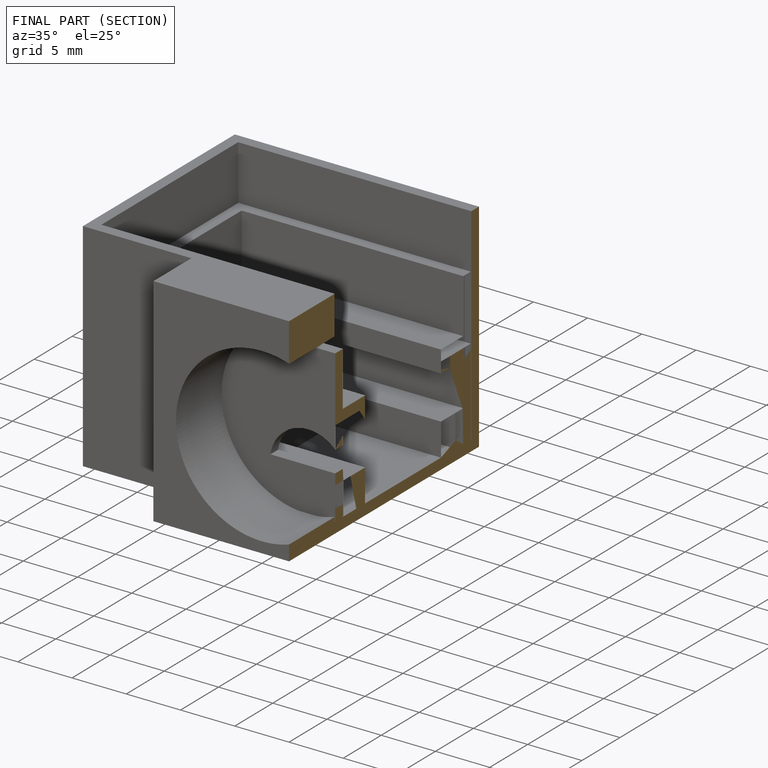
[diagram: finished part — half-section view (interior)]
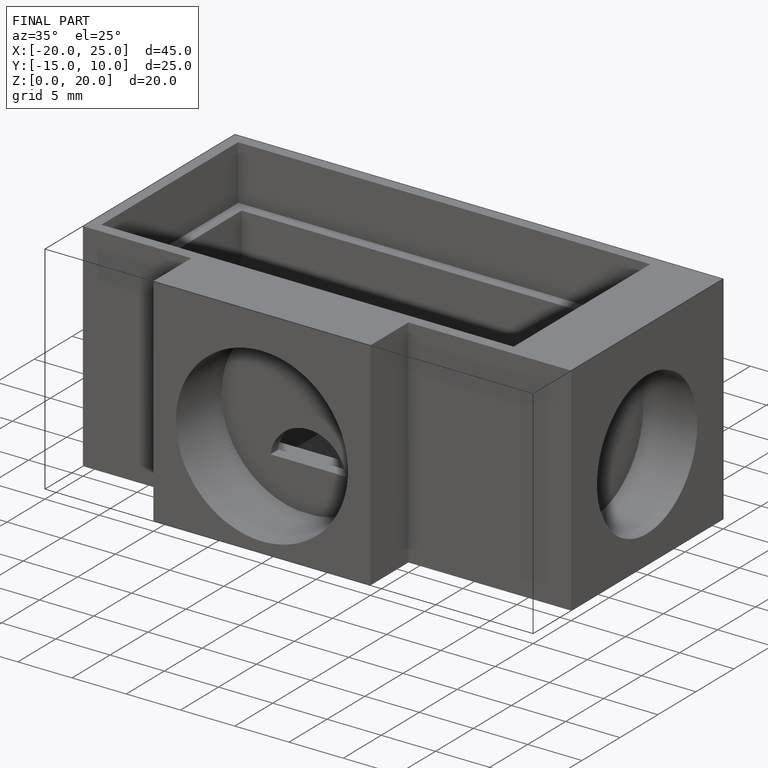
[diagram: finished part — iso view with bounding-box wireframe]
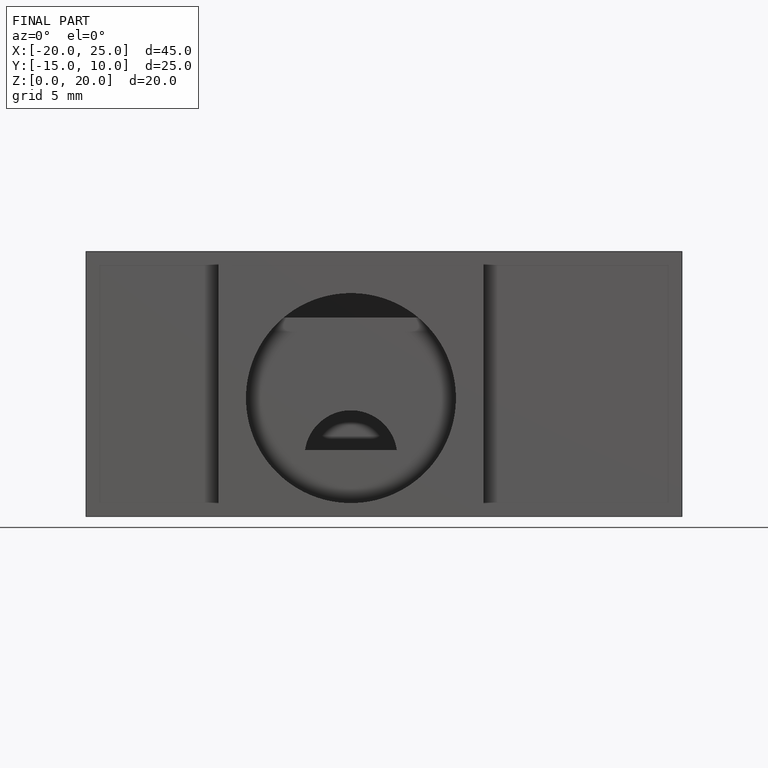
[diagram: finished part — front view with bounding-box wireframe]
